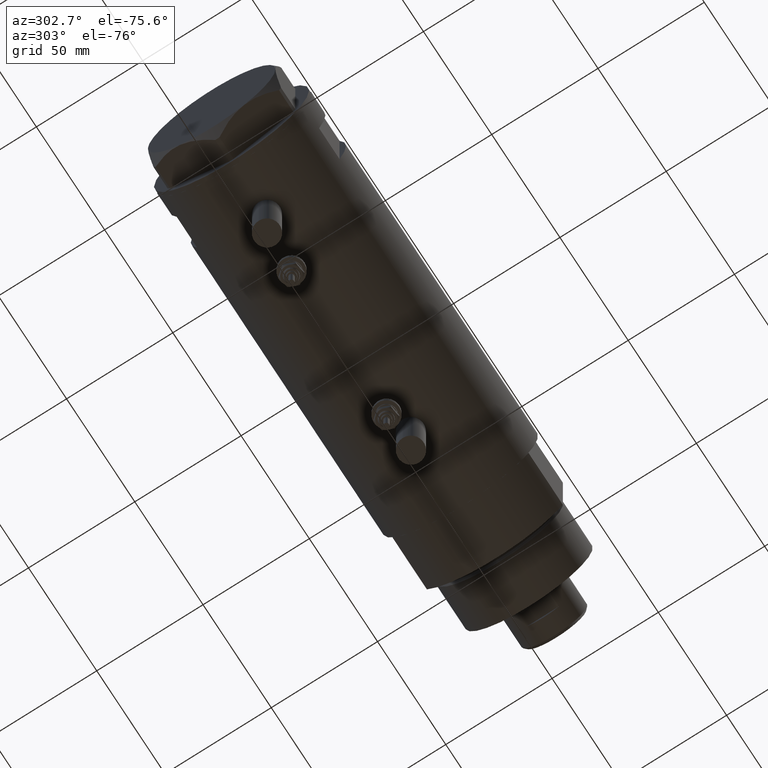
[diagram: clean part render]
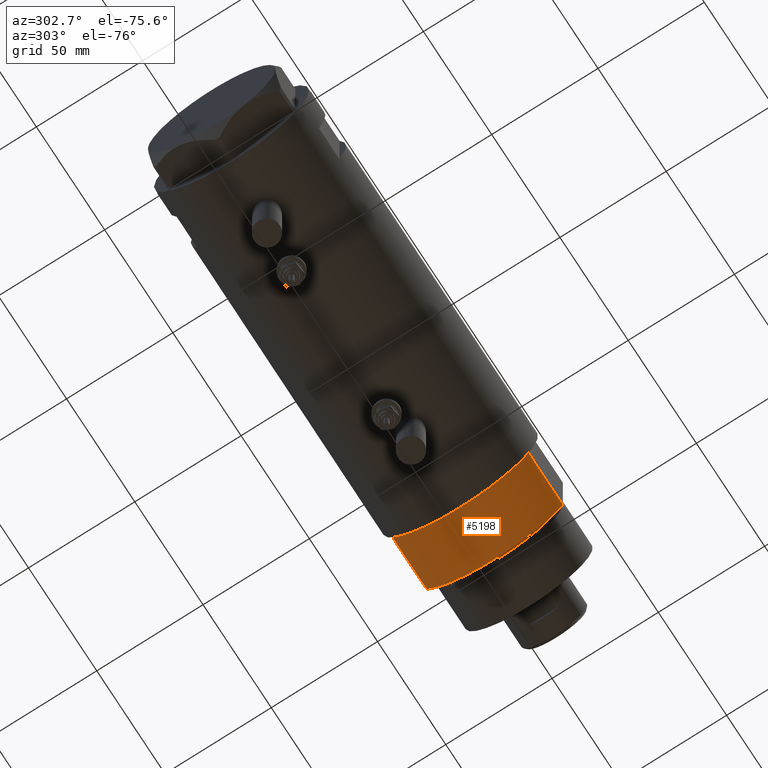
[diagram: same view with one face highlighted and labeled with its STEP entity id]
A machine part, auxiliary view. The second image highlights one B-rep face of the part: STEP entity #5198.
In plain terms, the highlighted cylindrical surface (partial cylindrical patch) has radius 36.5 mm, axis along (-1, -0, 0).
Its self-contained STEP definition (entity closure, byte-faithful):
#624 = CARTESIAN_POINT ( 'NONE',  ( 0.000000000000000000, 0.000000000000000000, 25.19999999999999929 ) ) ;
#927 = ORIENTED_EDGE ( 'NONE', *, *, #5881, .T. ) ;
#1065 = CIRCLE ( 'NONE', #2963, 36.50000000000000000 ) ;
#1132 = VERTEX_POINT ( 'NONE', #2371 ) ;
#1179 = CYLINDRICAL_SURFACE ( 'NONE', #3248, 36.50000000000000000 ) ;
#1254 = CARTESIAN_POINT ( 'NONE',  ( 0.000000000000000000, 0.000000000000000000, 0.000000000000000000 ) ) ;
#1439 = EDGE_CURVE ( 'NONE', #3713, #1794, #1065, .T. ) ;
#1546 = CIRCLE ( 'NONE', #4888, 36.50000000000000000 ) ;
#1593 = CARTESIAN_POINT ( 'NONE',  ( 17.55704986607943141, 32.00000000000000000, 0.000000000000000000 ) ) ;
#1741 = CARTESIAN_POINT ( 'NONE',  ( 0.000000000000000000, 0.000000000000000000, 25.19999999999999929 ) ) ;
#1742 = ORIENTED_EDGE ( 'NONE', *, *, #4983, .F. ) ;
#1794 = VERTEX_POINT ( 'NONE', #5386 ) ;
#1904 = EDGE_CURVE ( 'NONE', #2057, #1132, #1546, .T. ) ;
#1950 = VECTOR ( 'NONE', #2407, 1000.000000000000000 ) ;
#1981 = DIRECTION ( 'NONE',  ( -0.000000000000000000, -0.000000000000000000, -1.000000000000000000 ) ) ;
#2057 = VERTEX_POINT ( 'NONE', #3834 ) ;
#2140 = LINE ( 'NONE', #1593, #3434 ) ;
#2371 = CARTESIAN_POINT ( 'NONE',  ( 17.55704986607943496, 32.00000000000000000, 0.000000000000000000 ) ) ;
#2407 = DIRECTION ( 'NONE',  ( -0.000000000000000000, -0.000000000000000000, 1.000000000000000000 ) ) ;
#2657 = DIRECTION ( 'NONE',  ( 1.000000000000000000, 0.000000000000000000, 0.000000000000000000 ) ) ;
#2690 = DIRECTION ( 'NONE',  ( 0.000000000000000000, 0.000000000000000000, 1.000000000000000000 ) ) ;
#2911 = DIRECTION ( 'NONE',  ( -1.000000000000000000, 0.000000000000000000, 0.000000000000000000 ) ) ;
#2963 = AXIS2_PLACEMENT_3D ( 'NONE', #1741, #3575, #4437 ) ;
#3248 = AXIS2_PLACEMENT_3D ( 'NONE', #624, #1981, #2911 ) ;
#3384 = EDGE_LOOP ( 'NONE', ( #4298, #1742, #3773, #927 ) ) ;
#3434 = VECTOR ( 'NONE', #4363, 1000.000000000000000 ) ;
#3575 = DIRECTION ( 'NONE',  ( 0.000000000000000000, 0.000000000000000000, 1.000000000000000000 ) ) ;
#3713 = VERTEX_POINT ( 'NONE', #5901 ) ;
#3773 = ORIENTED_EDGE ( 'NONE', *, *, #1904, .T. ) ;
#3834 = CARTESIAN_POINT ( 'NONE',  ( 17.55704986607943141, -32.00000000000000000, 0.000000000000000000 ) ) ;
#4298 = ORIENTED_EDGE ( 'NONE', *, *, #1439, .F. ) ;
#4363 = DIRECTION ( 'NONE',  ( -0.000000000000000000, -0.000000000000000000, 1.000000000000000000 ) ) ;
#4437 = DIRECTION ( 'NONE',  ( 1.000000000000000000, 0.000000000000000000, 0.000000000000000000 ) ) ;
#4888 = AXIS2_PLACEMENT_3D ( 'NONE', #1254, #2690, #2657 ) ;
#4959 = CARTESIAN_POINT ( 'NONE',  ( 17.55704986607943141, -32.00000000000000000, 0.000000000000000000 ) ) ;
#4983 = EDGE_CURVE ( 'NONE', #2057, #3713, #5573, .T. ) ;
#5198 = ADVANCED_FACE ( 'NONE', ( #5225 ), #1179, .T. ) ;
#5225 = FACE_OUTER_BOUND ( 'NONE', #3384, .T. ) ;
#5386 = CARTESIAN_POINT ( 'NONE',  ( 17.55704986607943496, 32.00000000000000000, 25.19999999999999929 ) ) ;
#5573 = LINE ( 'NONE', #4959, #1950 ) ;
#5881 = EDGE_CURVE ( 'NONE', #1132, #1794, #2140, .T. ) ;
#5901 = CARTESIAN_POINT ( 'NONE',  ( 17.55704986607943496, -32.00000000000000000, 25.19999999999999929 ) ) ;